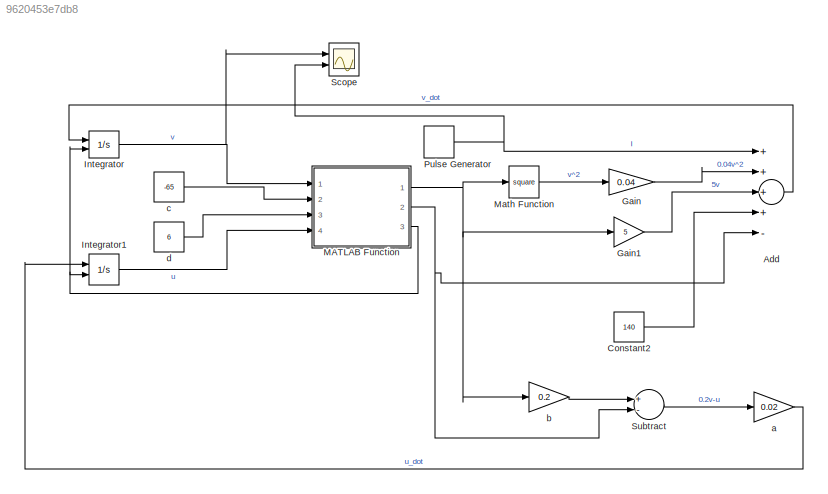
MODEL slx_9620453e7db8
KIND model
CONFIG AbsTol = auto
CONFIG EnableMultiTasking = off
CONFIG FixedStep = auto
CONFIG MaxStep = 0.1
CONFIG MinStep = 0.01
CONFIG RelTol = 1e-3
CONFIG SampleTimeConstraint = Unconstrained
CONFIG Solver = VariableStepAuto
CONFIG SolverName = VariableStepAuto
CONFIG StartTime = 0.0
CONFIG StopTime = 500
BLOCK [Sum] Add
  InputSameDT = off
  Inputs = ++++-
  OutDataTypeStr = Inherit: Inherit via internal rule
  Ports = [5, 1]
  SaturateOnIntegerOverflow = off
BLOCK [Constant] Constant2
  Value = 140
BLOCK [Gain] Gain
  Gain = 0.04
  OutDataTypeStr = Inherit: Inherit via internal rule
  ParamDataTypeStr = Inherit: Inherit via internal rule
  SaturateOnIntegerOverflow = off
BLOCK [Gain] Gain1
  Gain = 5
  OutDataTypeStr = Inherit: Inherit via internal rule
  ParamDataTypeStr = Inherit: Inherit via internal rule
  SaturateOnIntegerOverflow = off
BLOCK [Integrator] Integrator
  ExternalReset = rising
  InitialCondition = -65
  LimitOutput = on
  Ports = [2, 1]
  UpperSaturationLimit = 30
BLOCK [Integrator] Integrator1
  ExternalReset = rising
  InitialCondition = 6
  Ports = [2, 1]
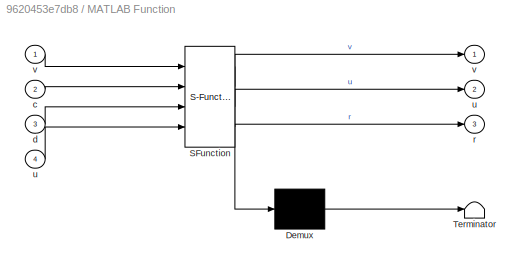
BLOCK [SubSystem] MATLAB Function
  ErrorFcn = Stateflow.Translate.translate
  PermitHierarchicalResolution = ExplicitOnly
  Ports = [4, 3]
  RequestExecContextInheritance = off
  SFBlockType = MATLAB Function
  TreatAsAtomicUnit = on
  Variant = off
BLOCK [Demux] MATLAB Function/ Demux 
  Outputs = 1
  Ports = [1, 1]
BLOCK [S-Function] MATLAB Function/ SFunction 
  EnableBusSupport = on
  FunctionName = sf_sfun
  PortCounts = [4 4]
  Ports = [4, 4]
  SFcnIsStateOwnerBlock = off
  SFunctionDeploymentMode = off
  Tag = Stateflow S-Function Izhikevich_Neuron_Model 2
BLOCK [Terminator] MATLAB Function/ Terminator 
BLOCK [Inport] MATLAB Function/c
  IconDisplay = Port number
  Port = 2
BLOCK [Inport] MATLAB Function/d
  IconDisplay = Port number
  Port = 3
BLOCK [Outport] MATLAB Function/r
  IconDisplay = Port number
  Port = 3
BLOCK [Outport] MATLAB Function/u
  IconDisplay = Port number
  Port = 2
BLOCK [Inport] MATLAB Function/u 
  IconDisplay = Port number
  Port = 4
BLOCK [Outport] MATLAB Function/v
  IconDisplay = Port number
BLOCK [Inport] MATLAB Function/v 
  IconDisplay = Port number
BLOCK [Math] Math Function
  Operator = square
  Ports = [1, 1]
BLOCK [DiscretePulseGenerator] Pulse Generator
  Amplitude = 0
  Period = 250
  PhaseDelay = 60
  Ports = [0, 1]
  PulseType = Time based
  PulseWidth = 50
BLOCK [Scope] Scope
  NumInputPorts = 2
  Ports = [2]
  ScopeSpecificationString = Simulink.scopes.TimeScopeBlockCfg('CurrentConfiguration', extmgr.ConfigurationSet(extmgr.Configuration('Core','General UI',true,'FigureColor',[1 1 1]),extmgr.Configuration('Core','Source UI',true),extmgr.Configuration('Sources','WiredSimulink',true),extmgr.Configuration('Visuals','Time Domain',true,'SerializedDisplays',{struct('MinYLimReal','-87.92479','MaxYLimReal','-62.4528','YLabelReal','','Min...<+2162ch>
BLOCK [Sum] Subtract
  InputSameDT = off
  Inputs = +-
  OutDataTypeStr = Inherit: Inherit via internal rule
  Ports = [2, 1]
  SaturateOnIntegerOverflow = off
BLOCK [Gain] a
  Gain = 0.02
  OutDataTypeStr = Inherit: Inherit via internal rule
  ParamDataTypeStr = Inherit: Inherit via internal rule
  SaturateOnIntegerOverflow = off
BLOCK [Gain] b
  Gain = 0.2
  OutDataTypeStr = Inherit: Inherit via internal rule
  ParamDataTypeStr = Inherit: Inherit via internal rule
  SaturateOnIntegerOverflow = off
BLOCK [Constant] c
  Value = -65
BLOCK [Constant] d
  Value = 6
LINE Add:1 -> Integrator:1
LINE Constant2:1 -> Add:4
LINE Gain1:1 -> Add:3
LINE Gain:1 -> Add:2
LINE Integrator1:1 -> MATLAB Function:4
NET Integrator:1 -> MATLAB Function:1, Scope:1
NET MATLAB Function:1 -> Gain1:1, Math Function:1, b:1
NET MATLAB Function:2 -> Add:5, Subtract:2
NET MATLAB Function:3 -> Integrator1:2, Integrator:2
LINE Math Function:1 -> Gain:1
NET Pulse Generator:1 -> Add:1, Scope:2
LINE Subtract:1 -> a:1
LINE a:1 -> Integrator1:1
LINE b:1 -> Subtract:1
LINE c:1 -> MATLAB Function:2
LINE d:1 -> MATLAB Function:3
note: NET lines group one-source signal fan-out (src -> all destinations, sorted); 1:1 wires keep LINE
CHART MATLAB Function states=1 transitions=1
  STATE_LABEL 'eML_blk_kernel()'
  STATE_LABEL 'SCRIPT:\nfunction [v, u, r] = repolarization(v, c, d, u)\n\nif v >= 30\n    v = c;\n    u = c + d;\n    r = 1;\nelse\n    r = 0;\nend'
